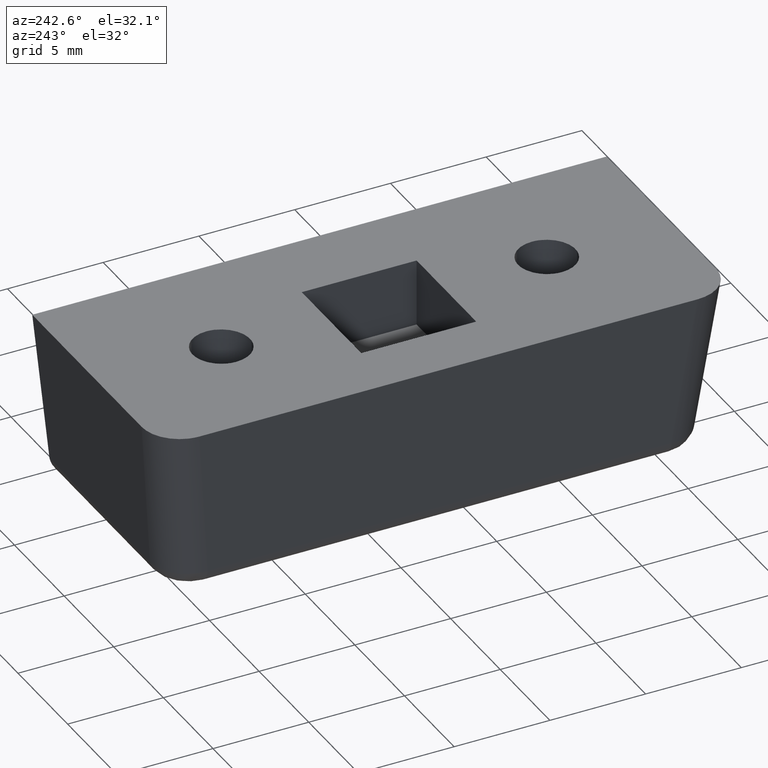
[diagram: clean part render]
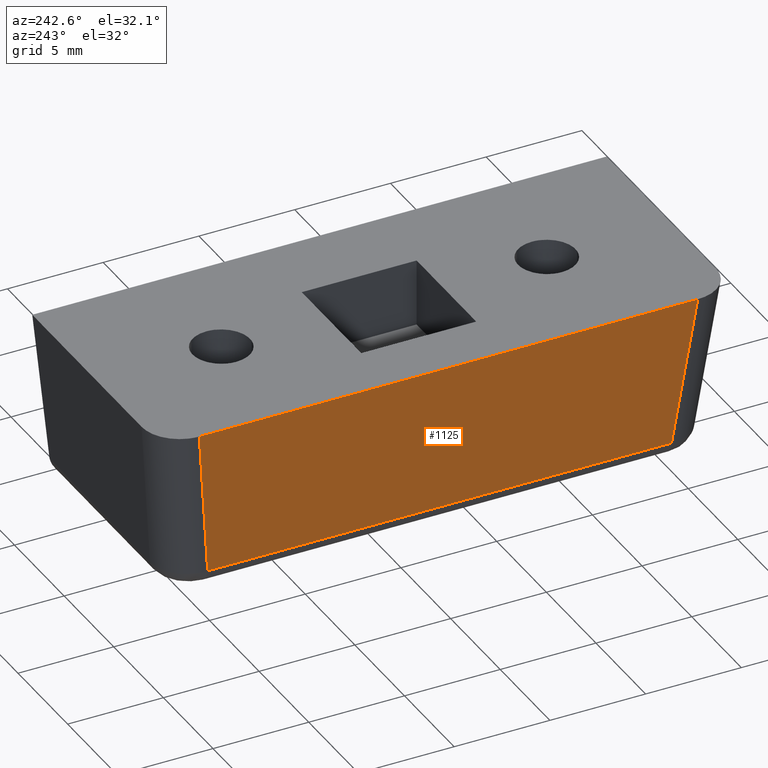
[diagram: same view with one face highlighted and labeled with its STEP entity id]
A machine part, auxiliary view. The second image highlights one B-rep face of the part: STEP entity #1125.
In plain terms, the highlighted face is a freeform B-spline surface patch.
Its self-contained STEP definition (entity closure, byte-faithful):
#456=CARTESIAN_POINT('',(-188.098840734183990,-20.111073453119701,30.389568469517549));
#457=VERTEX_POINT('',#456);
#555=CARTESIAN_POINT('',(-188.098840734183990,4.111073453119674,30.389568469517549));
#556=VERTEX_POINT('',#555);
#746=CARTESIAN_POINT('',(-189.0,-21.012232409050149,38.500000000000000));
#747=VERTEX_POINT('',#746);
#748=CARTESIAN_POINT('',(-188.098840734183990,-20.111073453119701,30.389568469517549));
#749=CARTESIAN_POINT('',(-189.0,-21.012232409050149,38.500000000000000));
#750=QUASI_UNIFORM_CURVE('',1,(#748,#749),.UNSPECIFIED.,.F.,.U.);
#751=EDGE_CURVE('',#457,#747,#750,.T.);
#799=CARTESIAN_POINT('',(-189.0,5.012232409050130,38.500000000000000));
#800=VERTEX_POINT('',#799);
#801=CARTESIAN_POINT('',(-189.0,5.012232409050130,38.500000000000000));
#802=CARTESIAN_POINT('',(-188.098840734183990,4.111073453119674,30.389568469517549));
#803=QUASI_UNIFORM_CURVE('',1,(#801,#802),.UNSPECIFIED.,.F.,.U.);
#804=EDGE_CURVE('',#800,#556,#803,.T.);
#1101=CARTESIAN_POINT('',(-188.098840734183990,-20.111073453119701,30.389568469517549));
#1102=CARTESIAN_POINT('',(-188.098840734183990,4.111073453119674,30.389568469517549));
#1103=QUASI_UNIFORM_CURVE('',1,(#1101,#1102),.UNSPECIFIED.,.F.,.U.);
#1104=EDGE_CURVE('',#457,#556,#1103,.T.);
#1110=CARTESIAN_POINT('',(-189.045012887891290,-22.312154864871911,38.905116040971301));
#1111=CARTESIAN_POINT('',(-188.053828136228500,-22.312154864871911,29.984452176106782));
#1112=CARTESIAN_POINT('',(-189.045012887891290,6.312155097548732,38.905116040971301));
#1113=CARTESIAN_POINT('',(-188.053828136228500,6.312155097548732,29.984452176106782));
#1114=B_SPLINE_SURFACE_WITH_KNOTS('',1,1,((#1110,#1112),(#1111,#1113)),.UNSPECIFIED.,.F.,.F.,.U.,(2,2),(2,2),(0.0,8.975560762527785),(0.0,28.624309962420639),.UNSPECIFIED.);
#1115=CARTESIAN_POINT('',(-189.0,-21.012232409050149,38.500000000000000));
#1116=CARTESIAN_POINT('',(-189.0,5.012232409050130,38.500000000000000));
#1117=QUASI_UNIFORM_CURVE('',1,(#1115,#1116),.UNSPECIFIED.,.F.,.U.);
#1118=EDGE_CURVE('',#747,#800,#1117,.T.);
#1119=ORIENTED_EDGE('',*,*,#1118,.T.);
#1120=ORIENTED_EDGE('',*,*,#804,.T.);
#1121=ORIENTED_EDGE('',*,*,#1104,.F.);
#1122=ORIENTED_EDGE('',*,*,#751,.T.);
#1123=EDGE_LOOP('',(#1119,#1120,#1121,#1122));
#1124=FACE_OUTER_BOUND('',#1123,.T.);
#1125=ADVANCED_FACE('',(#1124),#1114,.F.);